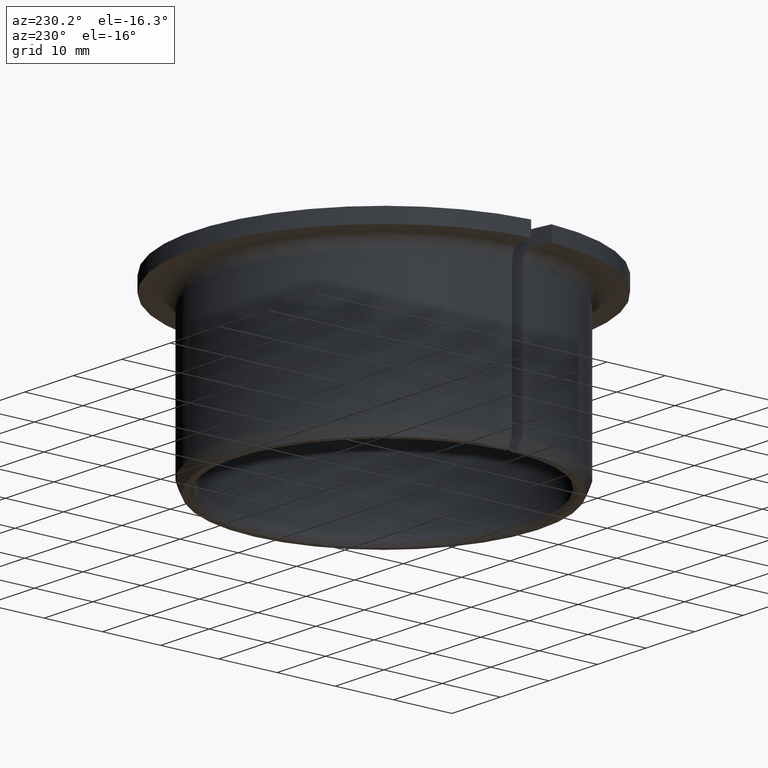
[diagram: clean part render]
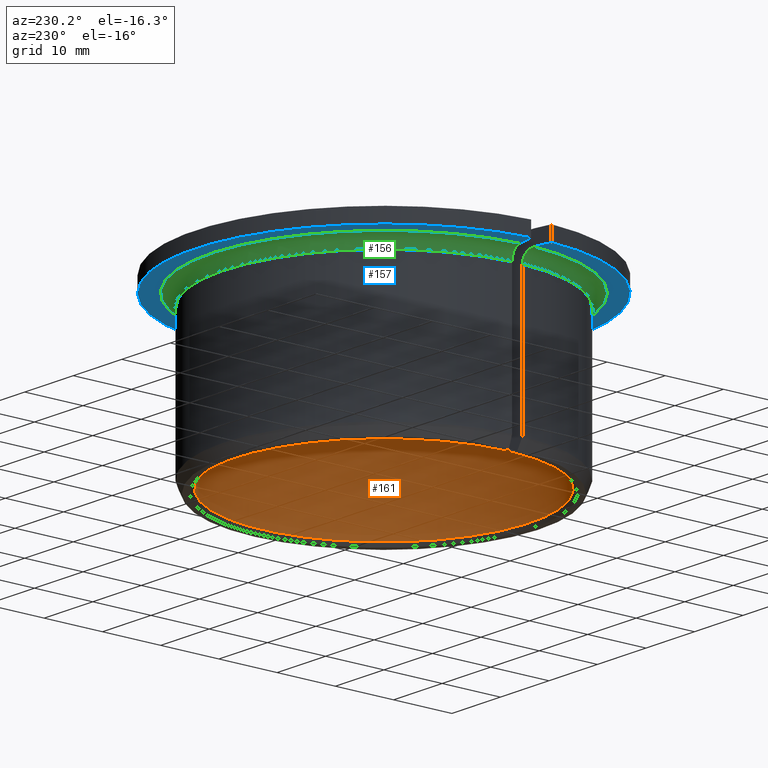
[diagram: same view with three faces highlighted in distinct colors, each labeled with its STEP entity id]
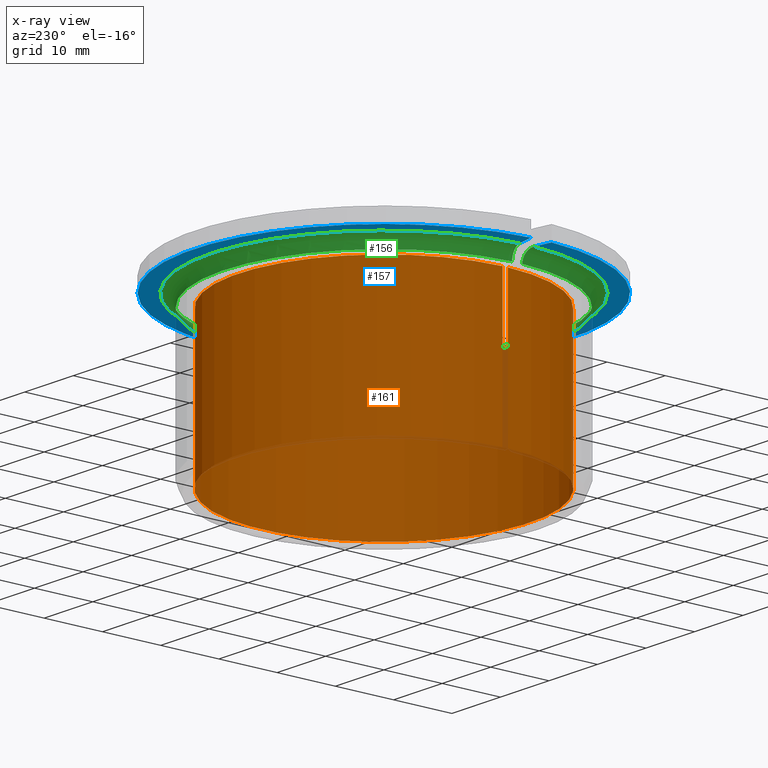
[diagram: x-ray of the same camera — body ghosted, the three highlighted faces saturated]
A machine part, auxiliary view with three faces highlighted in distinct colors.
The next image is the same camera in x-ray (body ghosted, the three faces saturated) — at least one of them is partly hidden behind the body in this view.
Their STEP definitions:

[orange] entity #161 — the highlighted cylindrical surface (partial cylindrical patch) has radius 25 mm, axis along (-0, 0, -1).
#161=ADVANCED_FACE('',(#183),#184,.F.);
#183=FACE_OUTER_BOUND('',#208,.T.);
#184=CYLINDRICAL_SURFACE('',#209,0.025);
#208=EDGE_LOOP('',(#278,#279,#280,#281));
#209=AXIS2_PLACEMENT_3D('',#282,#283,#284);
#278=ORIENTED_EDGE('',*,*,#324,.T.);
#279=ORIENTED_EDGE('',*,*,#338,.T.);
#280=ORIENTED_EDGE('',*,*,#325,.F.);
#281=ORIENTED_EDGE('',*,*,#321,.F.);
#282=CARTESIAN_POINT('',(0.0,0.0,0.0));
#283=DIRECTION('',(0.0,-6.12323399573677E-017,-1.0));
#284=DIRECTION('',(0.0,1.0,-6.12323399573677E-017));
#321=EDGE_CURVE('',#359,#342,#361,.F.);
#324=EDGE_CURVE('',#359,#364,#366,.T.);
#325=EDGE_CURVE('',#342,#367,#368,.T.);
#338=EDGE_CURVE('',#364,#367,#387,.F.);
#342=VERTEX_POINT('',#392);
#359=VERTEX_POINT('',#447);
#361=LINE('',#452,#453);
#364=VERTEX_POINT('',#456);
#366=CIRCLE('',#461,0.025);
#367=VERTEX_POINT('',#462);
#368=CIRCLE('',#463,0.025);
#387=LINE('',#516,#517);
#392=CARTESIAN_POINT('',(0.0249961253366833,-0.000440134244087271,0.0255));
#447=CARTESIAN_POINT('',(0.0249961253366833,-0.000440134244087272,0.0006));
#452=CARTESIAN_POINT('',(0.0249961253366833,-0.000440134244087272,3.66320758856E-020));
#453=VECTOR('',#531,1.0);
#456=CARTESIAN_POINT('',(0.0249961253366833,0.000440134244087273,0.0006));
#461=AXIS2_PLACEMENT_3D('',#535,#536,#537);
#462=CARTESIAN_POINT('',(0.0249961253366833,0.000440134244087276,0.0255));
#463=AXIS2_PLACEMENT_3D('',#538,#539,#540);
#516=CARTESIAN_POINT('',(0.0249961253366833,0.000440134244087274,-5.10600069913184E-020));
#517=VECTOR('',#563,1.0);
#531=DIRECTION('',(0.0,-6.12323399573677E-017,-1.0));
#535=CARTESIAN_POINT('',(0.0,0.0,0.0006));
#536=DIRECTION('',(0.0,-6.12323399573677E-017,-1.0));
#537=DIRECTION('',(0.0,1.0,-6.12323399573677E-017));
#538=CARTESIAN_POINT('',(0.0,0.0,0.0255));
#539=DIRECTION('',(0.0,-6.12323399573677E-017,-1.0));
#540=DIRECTION('',(0.0,1.0,-6.12323399573677E-017));
#563=DIRECTION('',(0.0,-6.12323399573677E-017,-1.0));

[blue] entity #157 — the highlighted planar face has unit normal (-0, 0, -1).
#157=ADVANCED_FACE('',(#175),#176,.T.);
#175=FACE_OUTER_BOUND('',#200,.T.);
#176=PLANE('',#201);
#200=EDGE_LOOP('',(#250,#251,#252,#253));
#201=AXIS2_PLACEMENT_3D('',#254,#255,#256);
#250=ORIENTED_EDGE('',*,*,#331,.T.);
#251=ORIENTED_EDGE('',*,*,#332,.T.);
#252=ORIENTED_EDGE('',*,*,#328,.F.);
#253=ORIENTED_EDGE('',*,*,#315,.F.);
#254=CARTESIAN_POINT('',(0.0295,0.0,0.0275));
#255=DIRECTION('',(0.0,-6.12323399573677E-017,-1.0));
#256=DIRECTION('',(0.0,1.0,-6.12323399573677E-017));
#315=EDGE_CURVE('',#347,#349,#350,.T.);
#328=EDGE_CURVE('',#349,#372,#373,.T.);
#331=EDGE_CURVE('',#347,#377,#378,.T.);
#332=EDGE_CURVE('',#377,#372,#379,.T.);
#347=VERTEX_POINT('',#415);
#349=VERTEX_POINT('',#418);
#350=LINE('',#419,#420);
#372=VERTEX_POINT('',#484);
#373=CIRCLE('',#485,0.0295);
#377=VERTEX_POINT('',#502);
#378=CIRCLE('',#503,0.0325);
#379=LINE('',#504,#505);
#415=CARTESIAN_POINT('',(0.0324525853097394,-0.00175490931790977,0.0275));
#418=CARTESIAN_POINT('',(0.0294743561882176,-0.0012297671690538,0.0275));
#419=CARTESIAN_POINT('',(0.0292889241727507,-0.00119707050163984,0.0275));
#420=VECTOR('',#528,1.0);
#484=CARTESIAN_POINT('',(0.0294743561882176,0.0012297671690538,0.0275));
#485=AXIS2_PLACEMENT_3D('',#544,#545,#546);
#502=CARTESIAN_POINT('',(0.0324525853097394,0.00175490931790978,0.0275));
#503=AXIS2_PLACEMENT_3D('',#550,#551,#552);
#504=CARTESIAN_POINT('',(0.0292889241727507,0.00119707050163984,0.0275));
#505=VECTOR('',#553,1.0);
#528=DIRECTION('',(-0.984807753012208,0.173648177666931,-1.06328842478789E-017));
#544=CARTESIAN_POINT('',(0.0,0.0,0.0275));
#545=DIRECTION('',(0.0,-6.12323399573677E-017,-1.0));
#546=DIRECTION('',(0.0,1.0,-6.12323399573677E-017));
#550=CARTESIAN_POINT('',(0.0,0.0,0.0275));
#551=DIRECTION('',(0.0,-6.12323399573677E-017,-1.0));
#552=DIRECTION('',(0.0,1.0,-6.12323399573677E-017));
#553=DIRECTION('',(-0.984807753012208,-0.173648177666931,1.06328842478789E-017));

[green] entity #156 — the highlighted toroidal blend (fillet) surface has major radius 29.5 mm and minor (blend) radius 2 mm.
#156=ADVANCED_FACE('',(#173),#174,.F.);
#173=FACE_OUTER_BOUND('',#198,.T.);
#174=TOROIDAL_SURFACE('',#199,0.0295,0.002);
#198=EDGE_LOOP('',(#243,#244,#245,#246));
#199=AXIS2_PLACEMENT_3D('',#247,#248,#249);
#243=ORIENTED_EDGE('',*,*,#328,.T.);
#244=ORIENTED_EDGE('',*,*,#329,.T.);
#245=ORIENTED_EDGE('',*,*,#330,.F.);
#246=ORIENTED_EDGE('',*,*,#316,.F.);
#247=CARTESIAN_POINT('',(0.0,0.0,0.0255));
#248=DIRECTION('',(0.0,-6.12323399573677E-017,-1.0));
#249=DIRECTION('',(0.0,1.0,-6.12323399573677E-017));
#316=EDGE_CURVE('',#349,#351,#352,.T.);
#328=EDGE_CURVE('',#349,#372,#373,.T.);
#329=EDGE_CURVE('',#372,#374,#375,.T.);
#330=EDGE_CURVE('',#351,#374,#376,.T.);
#349=VERTEX_POINT('',#418);
#351=VERTEX_POINT('',#421);
#352=B_SPLINE_CURVE_WITH_KNOTS('',3,(#422,#423,#424,#425,#426,#427,#428,#429,#430,#431,#432,#433,#434,#435),.UNSPECIFIED.,.F.,.F.,(4,2,2,2,2,2,4),(2.58992910416058E-005,0.000418320864793748,0.000810742438545891,0.00120316401229803,0.00159558558605018,0.00238042873355447,0.00316527188105876),.UNSPECIFIED.);
#372=VERTEX_POINT('',#484);
#373=CIRCLE('',#485,0.0295);
#374=VERTEX_POINT('',#486);
#375=B_SPLINE_CURVE_WITH_KNOTS('',3,(#487,#488,#489,#490,#491,#492,#493,#494,#495,#496,#497,#498,#499,#500),.UNSPECIFIED.,.F.,.F.,(4,2,2,2,2,2,4),(2.58992910416059E-005,0.000418320864793748,0.000810742438545891,0.00120316401229803,0.00159558558605018,0.00238042873355447,0.00316527188105876),.UNSPECIFIED.);
#376=CIRCLE('',#501,0.0275);
#418=CARTESIAN_POINT('',(0.0294743561882176,-0.0012297671690538,0.0275));
#421=CARTESIAN_POINT('',(0.0274859433915308,-0.000879156344211938,0.0255));
#422=CARTESIAN_POINT('',(0.0294743561882175,-0.0012297671690538,0.0275));
#423=CARTESIAN_POINT('',(0.0293439611733806,-0.00120677500978817,0.0275));
#424=CARTESIAN_POINT('',(0.0292155423733198,-0.00118413131050725,0.027487206640504));
#425=CARTESIAN_POINT('',(0.0289625250162748,-0.00113951752387265,0.0274368889339557));
#426=CARTESIAN_POINT('',(0.0288366001290207,-0.00111731356870709,0.0273987259786046));
#427=CARTESIAN_POINT('',(0.0285967830069188,-0.00107502733964467,0.0272992488605894));
#428=CARTESIAN_POINT('',(0.0284828105107184,-0.00105493091350585,0.027238298092113));
#429=CARTESIAN_POINT('',(0.0282667278696323,-0.00101682971381963,0.0270939906059196));
#430=CARTESIAN_POINT('',(0.0281643278464184,-0.000998773826901847,0.0270099469456205));
#431=CARTESIAN_POINT('',(0.027888623850312,-0.000950159773699137,0.0267342068730736));
#432=CARTESIAN_POINT('',(0.0277394485180011,-0.000923856137756577,0.0265112309057951));
#433=CARTESIAN_POINT('',(0.0275393292782336,-0.000888569716426703,0.0260291241136968));
#434=CARTESIAN_POINT('',(0.0274859433915291,-0.000879156344211655,0.0257654388684037));
#435=CARTESIAN_POINT('',(0.0274859433915291,-0.000879156344211651,0.0255000000000002));
#484=CARTESIAN_POINT('',(0.0294743561882176,0.0012297671690538,0.0275));
#485=AXIS2_PLACEMENT_3D('',#544,#545,#546);
#486=CARTESIAN_POINT('',(0.0274859433915308,0.000879156344211942,0.0255));
#487=CARTESIAN_POINT('',(0.0294743561882175,0.0012297671690538,0.0275));
#488=CARTESIAN_POINT('',(0.0293439611733806,0.00120677500978817,0.0275));
#489=CARTESIAN_POINT('',(0.0292155423733198,0.00118413131050725,0.027487206640504));
#490=CARTESIAN_POINT('',(0.0289625250162748,0.00113951752387265,0.0274368889339557));
#491=CARTESIAN_POINT('',(0.0288366001290207,0.0011173135687071,0.0273987259786046));
#492=CARTESIAN_POINT('',(0.0285967830069188,0.00107502733964467,0.0272992488605894));
#493=CARTESIAN_POINT('',(0.0284828105107184,0.00105493091350585,0.027238298092113));
#494=CARTESIAN_POINT('',(0.0282667278696323,0.00101682971381963,0.0270939906059196));
#495=CARTESIAN_POINT('',(0.0281643278464184,0.00099877382690185,0.0270099469456205));
#496=CARTESIAN_POINT('',(0.027888623850312,0.000950159773699141,0.0267342068730736));
#497=CARTESIAN_POINT('',(0.0277394485180011,0.00092385613775658,0.0265112309057951));
#498=CARTESIAN_POINT('',(0.0275393292782336,0.000888569716426706,0.0260291241136968));
#499=CARTESIAN_POINT('',(0.0274859433915291,0.000879156344211658,0.0257654388684037));
#500=CARTESIAN_POINT('',(0.0274859433915291,0.000879156344211654,0.0255000000000002));
#501=AXIS2_PLACEMENT_3D('',#547,#548,#549);
#544=CARTESIAN_POINT('',(0.0,0.0,0.0275));
#545=DIRECTION('',(0.0,-6.12323399573677E-017,-1.0));
#546=DIRECTION('',(0.0,1.0,-6.12323399573677E-017));
#547=CARTESIAN_POINT('',(0.0,0.0,0.0255));
#548=DIRECTION('',(0.0,-6.12323399573677E-017,-1.0));
#549=DIRECTION('',(0.0,1.0,-6.12323399573677E-017));